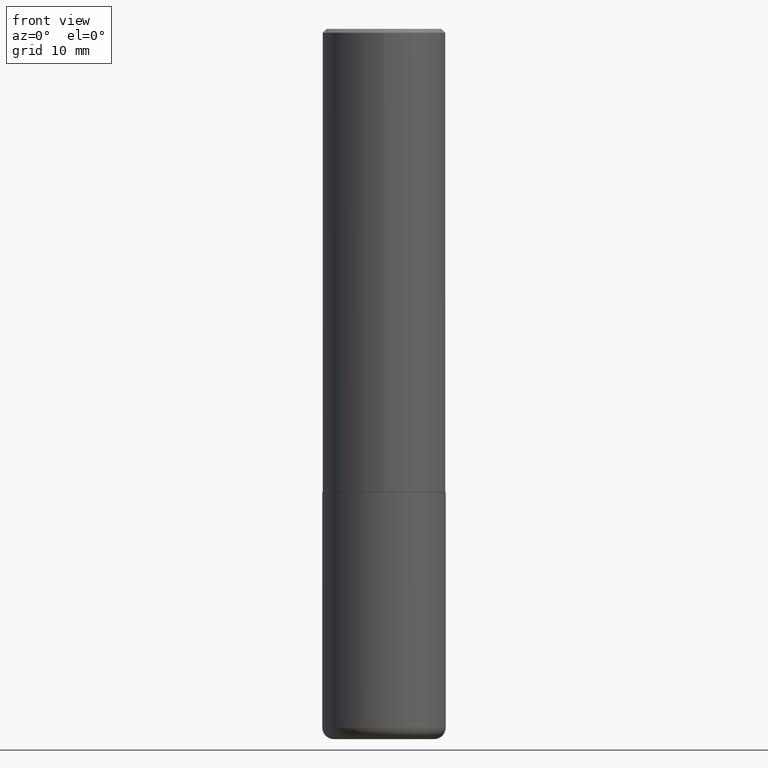
[diagram: clean part render]
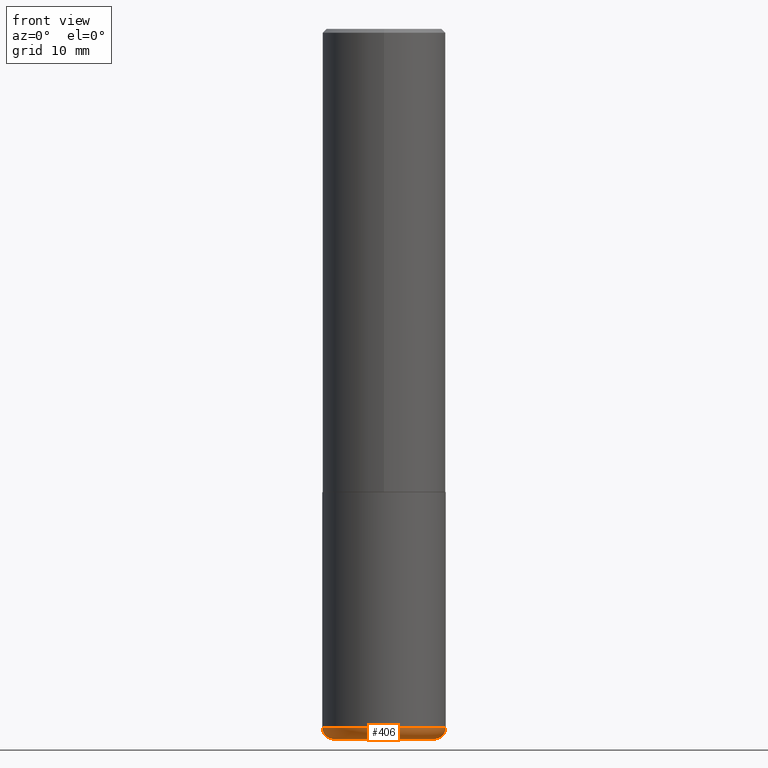
[diagram: same view with one face highlighted and labeled with its STEP entity id]
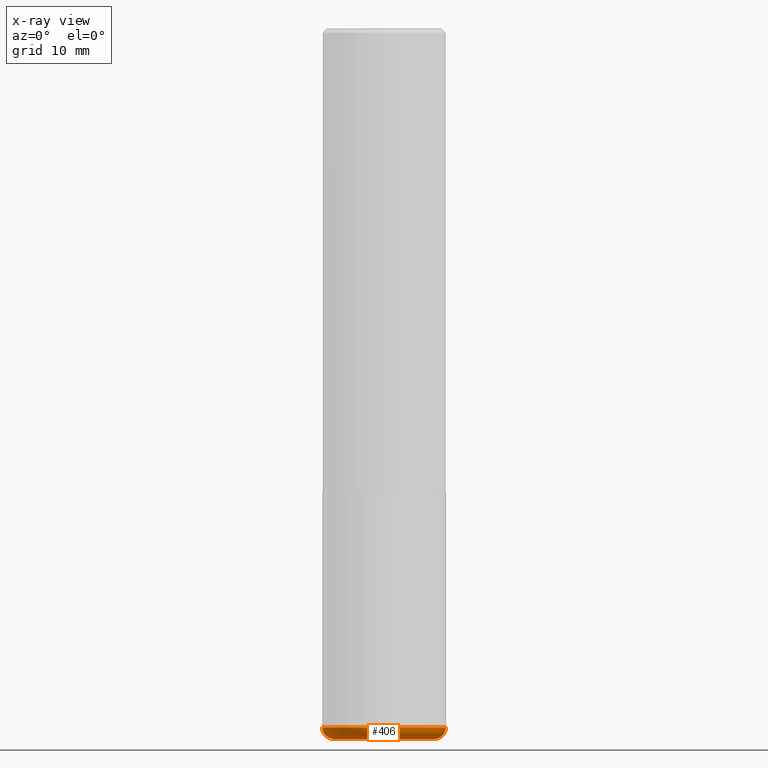
[diagram: x-ray of the same camera — body ghosted, the highlighted face saturated]
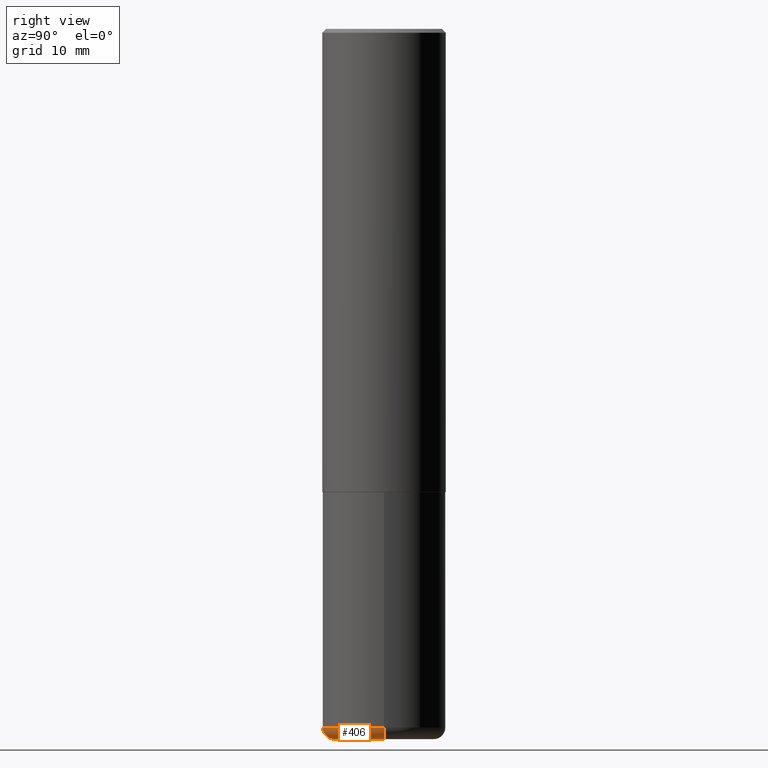
[diagram: same view with one face highlighted and labeled with its STEP entity id]
A machine part, front view. The second image highlights one B-rep face of the part: STEP entity #406.
The next image is the same camera in x-ray: the body ghosted, the highlighted face saturated — about 0% of this face is hidden behind the body in this view.
A second angle (right view) of the same face is appended — the face is thin or edge-on in the first view.
In plain terms, the highlighted toroidal blend (fillet) surface has major radius 6.4808 mm and minor (blend) radius 1.5189 mm.
Its self-contained STEP definition (entity closure, byte-faithful):
#18 = AXIS2_PLACEMENT_3D ( 'NONE', #153, #253, #256 ) ;
#21 = CARTESIAN_POINT ( 'NONE',  ( 8.711248981392691651E-29, -1.243735482522705070E-14, -3.562199999999999367 ) ) ;
#26 = AXIS2_PLACEMENT_3D ( 'NONE', #38, #72, #326 ) ;
#38 = CARTESIAN_POINT ( 'NONE',  ( 0.2551499999999999879, -1.421905775243870271E-14, -3.562199999999999367 ) ) ;
#55 = CARTESIAN_POINT ( 'NONE',  ( -0.2551499999999999879, -1.051634804897429637E-14, -3.621999999999999886 ) ) ;
#62 = CIRCLE ( 'NONE', #26, 0.05980000000000013777 ) ;
#69 = CIRCLE ( 'NONE', #310, 0.3149500000000000632 ) ;
#72 = DIRECTION ( 'NONE',  ( -6.982962677686266711E-15, -1.000000000000000000, 3.491481338843145583E-15 ) ) ;
#85 = EDGE_CURVE ( 'NONE', #130, #176, #403, .T. ) ;
#101 = VERTEX_POINT ( 'NONE', #188 ) ;
#112 = VERTEX_POINT ( 'NONE', #284 ) ;
#130 = VERTEX_POINT ( 'NONE', #55 ) ;
#153 = CARTESIAN_POINT ( 'NONE',  ( 8.857488016002564476E-29, -1.264614540928987199E-14, -3.621999999999999886 ) ) ;
#163 = AXIS2_PLACEMENT_3D ( 'NONE', #21, #178, #311 ) ;
#176 = VERTEX_POINT ( 'NONE', #255 ) ;
#178 = DIRECTION ( 'NONE',  ( -2.445468806185136597E-29, 3.491481338843145583E-15, 1.000000000000000000 ) ) ;
#188 = CARTESIAN_POINT ( 'NONE',  ( -0.3149500000000001743, -1.019950047895061313E-14, -3.562199999999999367 ) ) ;
#194 = ORIENTED_EDGE ( 'NONE', *, *, #85, .T. ) ;
#202 = ORIENTED_EDGE ( 'NONE', *, *, #232, .T. ) ;
#230 = DIRECTION ( 'NONE',  ( -2.445468806185136597E-29, 3.491481338843145583E-15, 1.000000000000000000 ) ) ;
#232 = EDGE_CURVE ( 'NONE', #176, #112, #62, .T. ) ;
#244 = DIRECTION ( 'NONE',  ( -1.000000000000000000, 7.105427357601017636E-15, 0.000000000000000000 ) ) ;
#253 = DIRECTION ( 'NONE',  ( -2.445468806185136597E-29, 3.491481338843145583E-15, 1.000000000000000000 ) ) ;
#255 = CARTESIAN_POINT ( 'NONE',  ( 0.2551499999999999879, -1.442784833650152243E-14, -3.621999999999999886 ) ) ;
#256 = DIRECTION ( 'NONE',  ( 1.000000000000000000, -6.982962677686268288E-15, 0.000000000000000000 ) ) ;
#279 = DIRECTION ( 'NONE',  ( 7.105427357601001859E-15, 1.000000000000000000, -3.491481338843145583E-15 ) ) ;
#280 = EDGE_LOOP ( 'NONE', ( #409, #194, #202, #402 ) ) ;
#284 = CARTESIAN_POINT ( 'NONE',  ( 0.3149500000000001743, -1.463663892056434215E-14, -3.562199999999999367 ) ) ;
#296 = TOROIDAL_SURFACE ( 'NONE', #163, 0.2551499999999999879, 0.05980000000000017246 ) ;
#310 = AXIS2_PLACEMENT_3D ( 'NONE', #391, #230, #360 ) ;
#311 = DIRECTION ( 'NONE',  ( 1.000000000000000000, -6.982962677686266711E-15, 4.883557194083112901E-29 ) ) ;
#326 = DIRECTION ( 'NONE',  ( 1.000000000000000000, -6.982962677686261189E-15, 0.000000000000000000 ) ) ;
#353 = EDGE_CURVE ( 'NONE', #101, #112, #69, .T. ) ;
#360 = DIRECTION ( 'NONE',  ( 1.000000000000000000, -6.982962677686268288E-15, 0.000000000000000000 ) ) ;
#379 = CARTESIAN_POINT ( 'NONE',  ( -0.2551499999999999879, -1.062440503493515516E-14, -3.562199999999999367 ) ) ;
#387 = CIRCLE ( 'NONE', #418, 0.05980000000000013777 ) ;
#391 = CARTESIAN_POINT ( 'NONE',  ( 8.711248981392691651E-29, -1.243735482522705070E-14, -3.562199999999999367 ) ) ;
#402 = ORIENTED_EDGE ( 'NONE', *, *, #353, .F. ) ;
#403 = CIRCLE ( 'NONE', #18, 0.2551499999999999879 ) ;
#406 = ADVANCED_FACE ( 'NONE', ( #407 ), #296, .T. ) ;
#407 = FACE_OUTER_BOUND ( 'NONE', #280, .T. ) ;
#409 = ORIENTED_EDGE ( 'NONE', *, *, #417, .F. ) ;
#417 = EDGE_CURVE ( 'NONE', #130, #101, #387, .T. ) ;
#418 = AXIS2_PLACEMENT_3D ( 'NONE', #379, #279, #244 ) ;